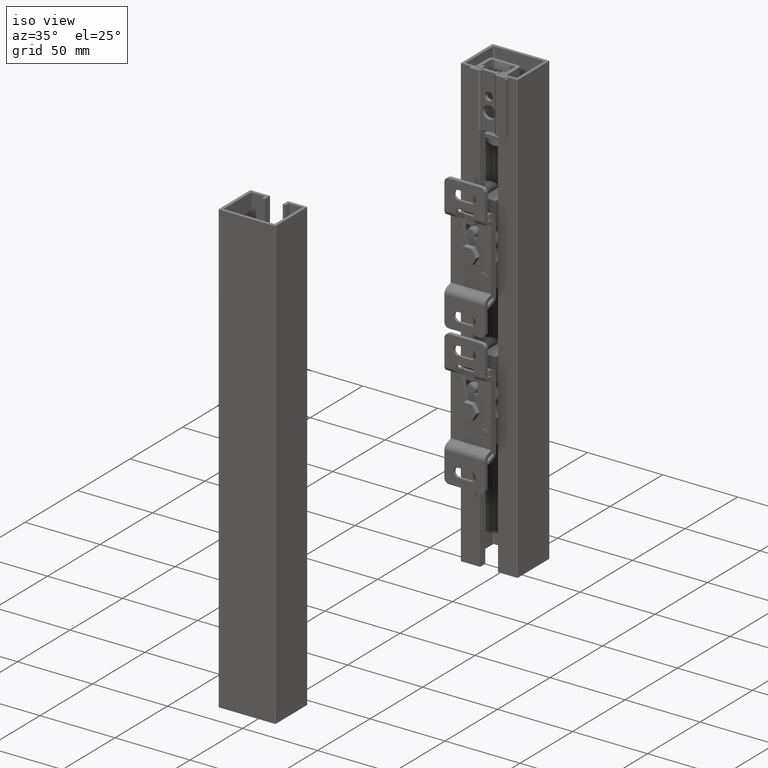
[diagram: clean part render]
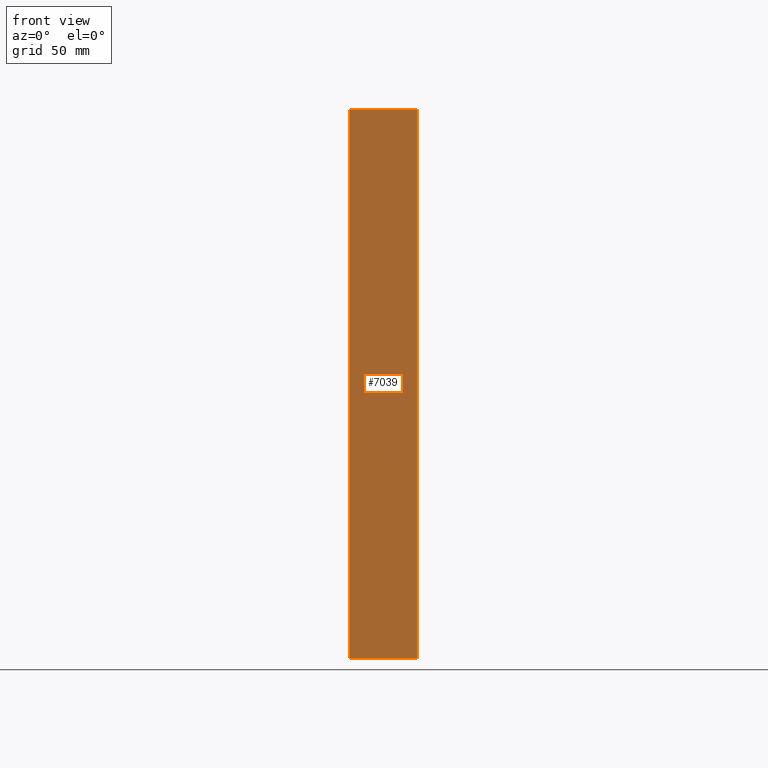
[diagram: tour spotlight — one face highlighted and labeled with its STEP entity id]
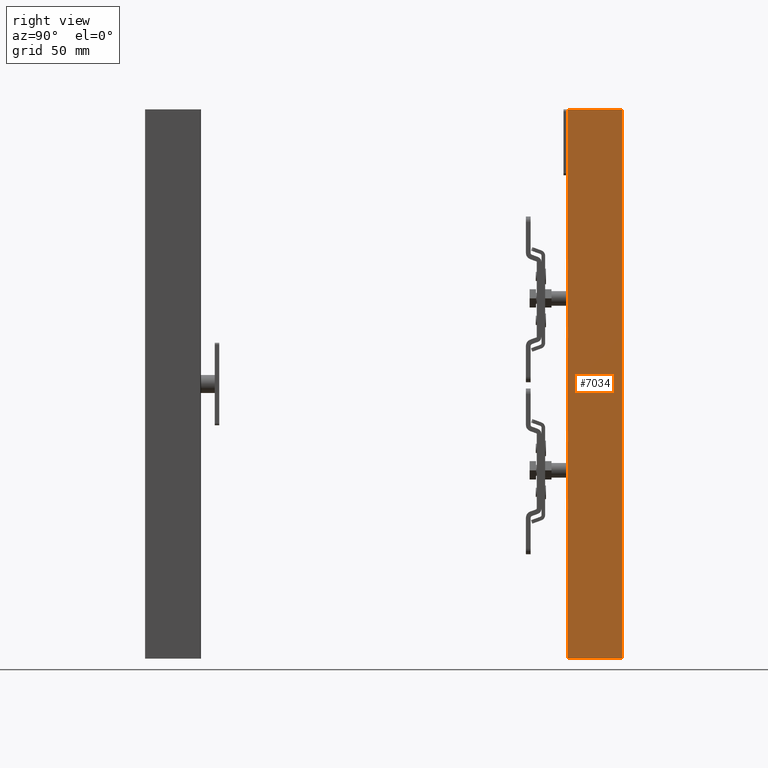
[diagram: tour spotlight — one face highlighted and labeled with its STEP entity id]
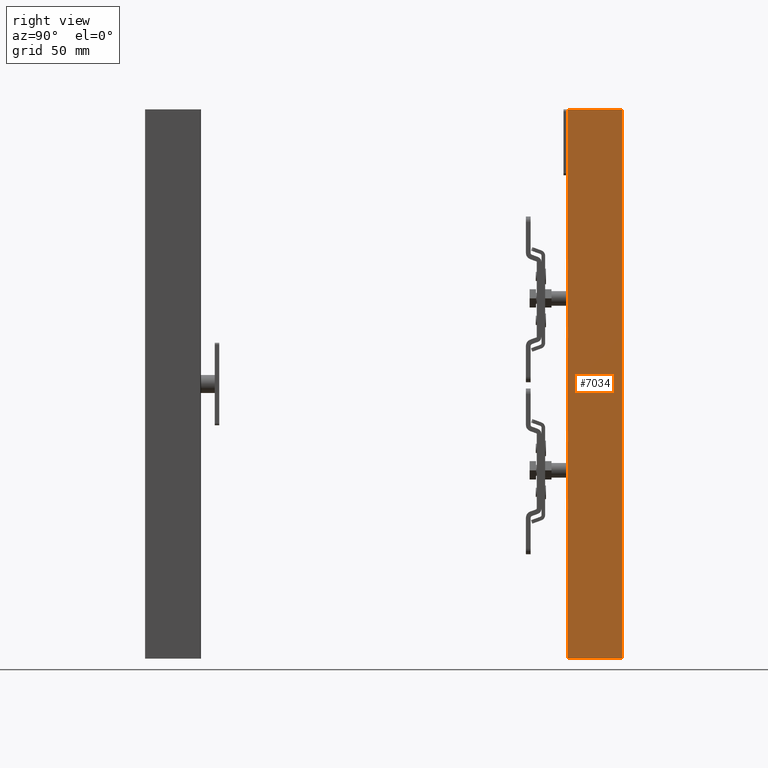
[diagram: tour spotlight — one face highlighted and labeled with its STEP entity id]
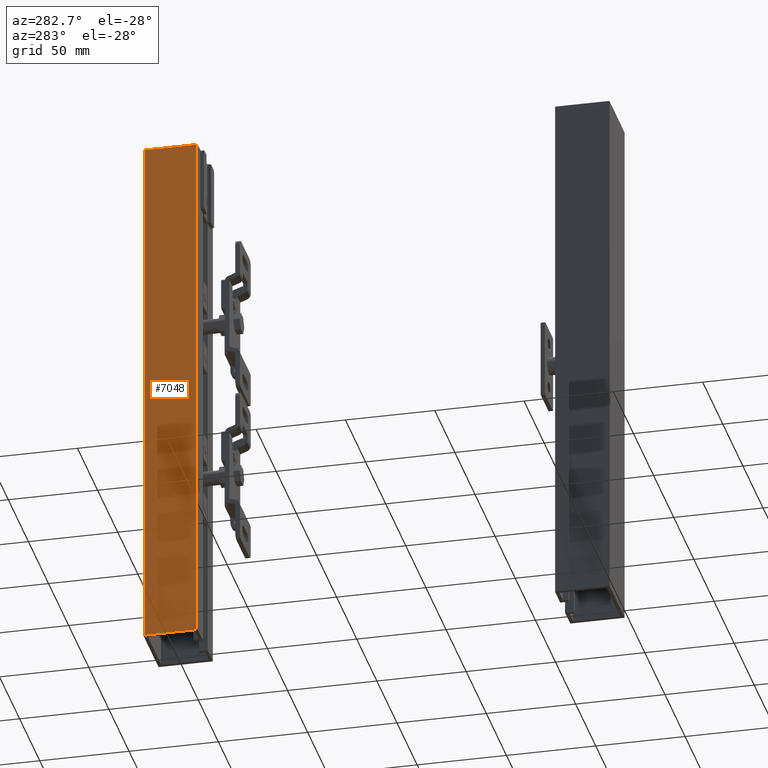
[diagram: tour spotlight — one face highlighted and labeled with its STEP entity id]
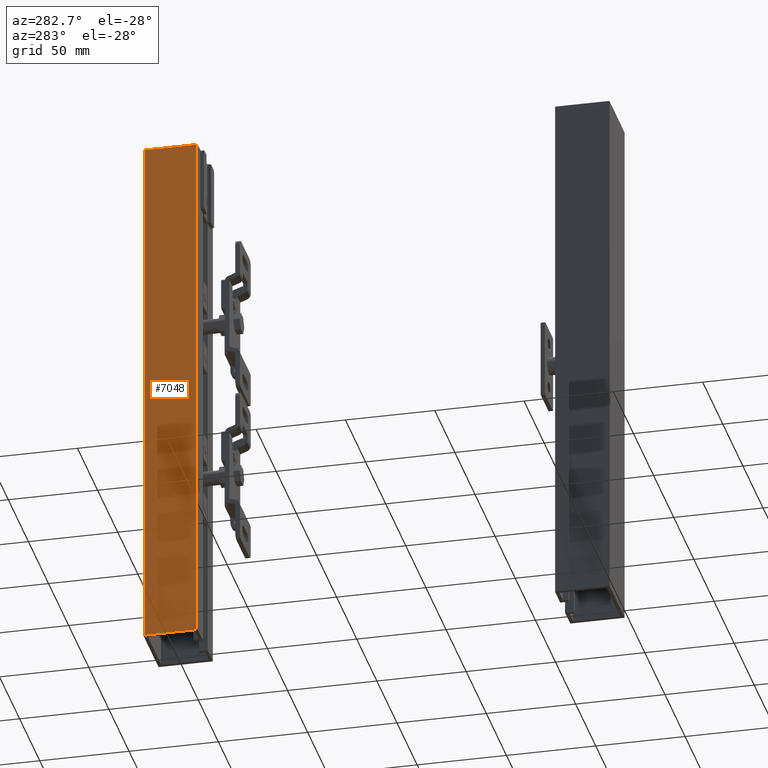
[diagram: tour spotlight — one face highlighted and labeled with its STEP entity id]
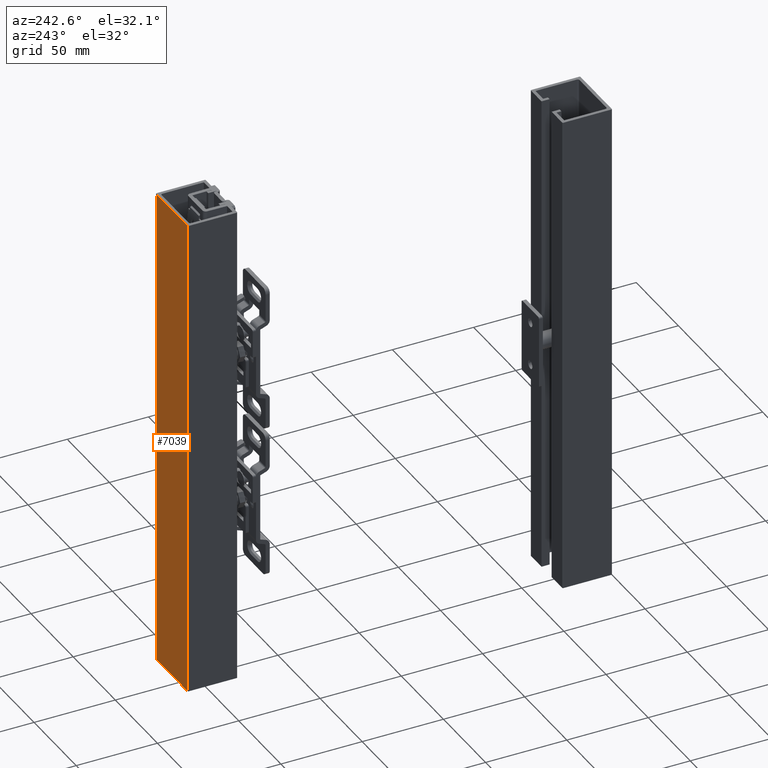
[diagram: tour spotlight — one face highlighted and labeled with its STEP entity id]
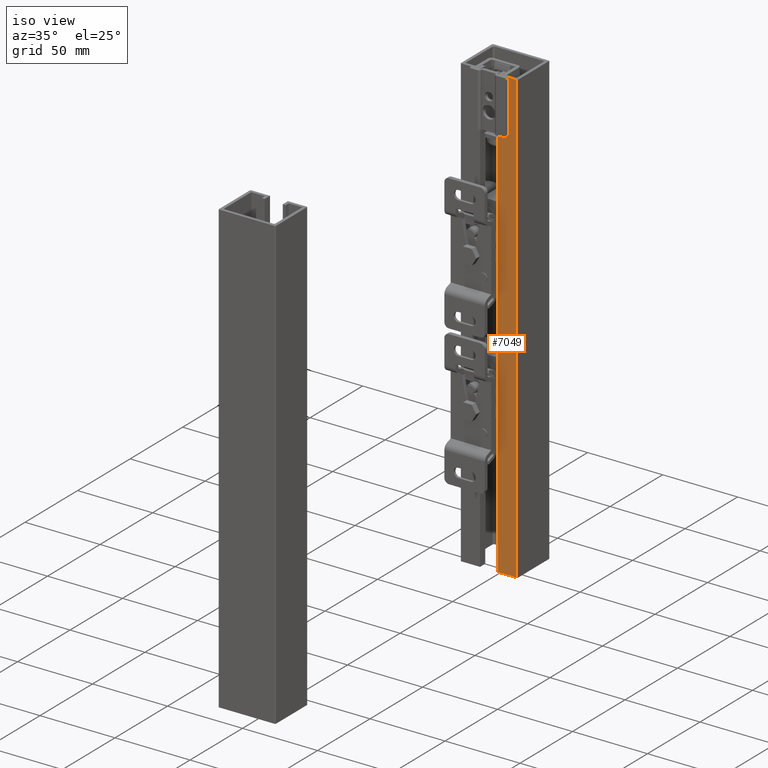
[diagram: tour spotlight — one face highlighted and labeled with its STEP entity id]
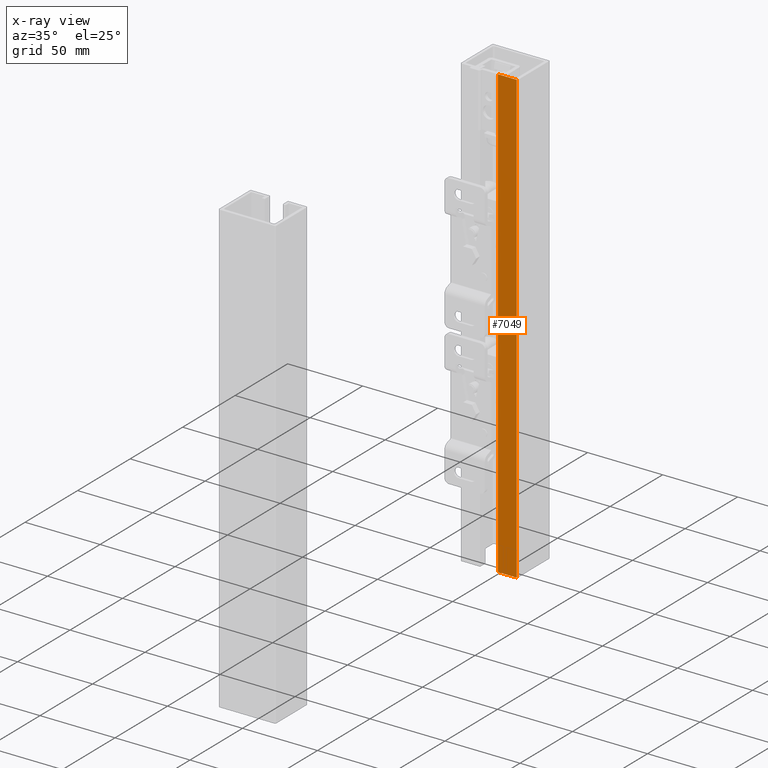
[diagram: x-ray of the same camera — body ghosted, this tour face saturated]
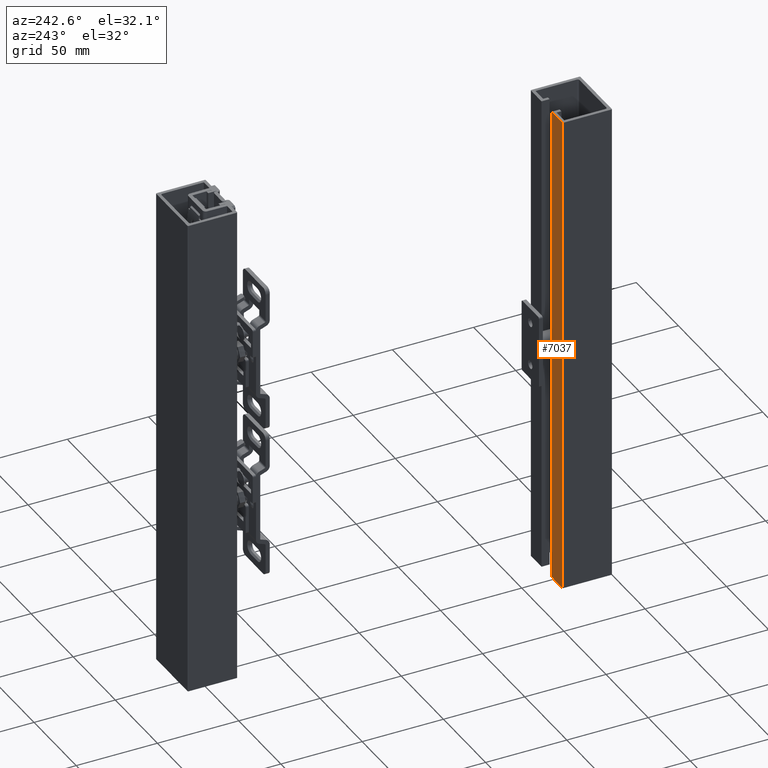
[diagram: tour spotlight — one face highlighted and labeled with its STEP entity id]
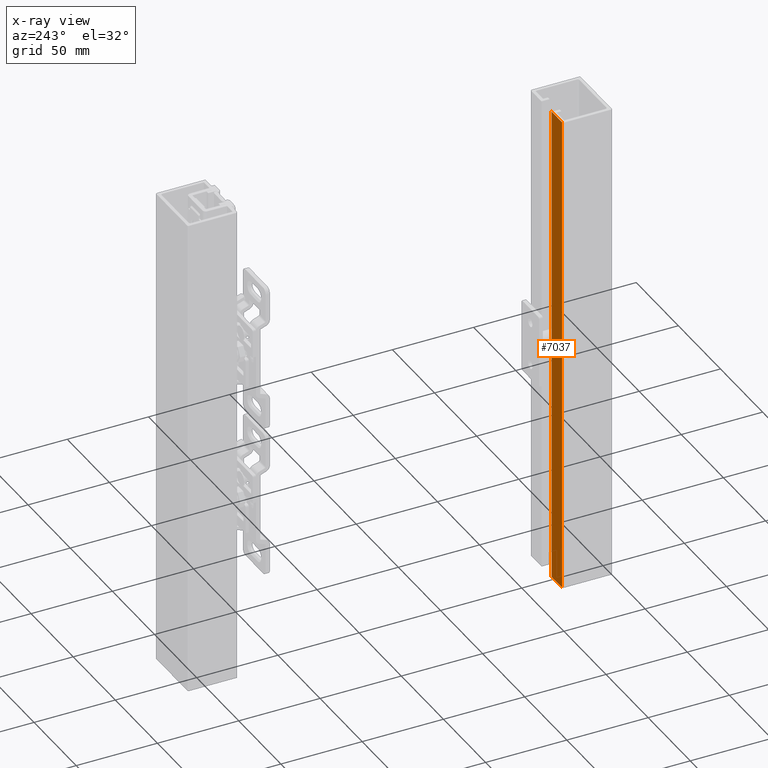
[diagram: x-ray of the same camera — body ghosted, this tour face saturated]
A machine part: a face-by-face anatomy tour. The part has 700 B-rep faces; the first image is the clean iso view, then the 8 largest visible faces are spotlighted one at a time (largest first), each with its STEP entity span.

Face 1 — front view, entity #7039. In plain terms, the highlighted planar face has unit normal (0, -1, 0).
Definition (entity closure, byte-faithful):
#284=PLANE('',#7491);
#531=FACE_OUTER_BOUND('',#956,.T.);
#956=EDGE_LOOP('',(#4914,#4915,#4916,#4917));
#1530=LINE('',#10534,#2189);
#1535=LINE('',#10550,#2194);
#1537=LINE('',#10554,#2196);
#1538=LINE('',#10555,#2197);
#2189=VECTOR('',#8305,37.);
#2194=VECTOR('',#8322,300.);
#2196=VECTOR('',#8326,37.);
#2197=VECTOR('',#8327,300.);
#3168=VERTEX_POINT('',#10531);
#3169=VERTEX_POINT('',#10533);
#3174=VERTEX_POINT('',#10548);
#3175=VERTEX_POINT('',#10553);
#3880=EDGE_CURVE('',#3168,#3169,#1530,.T.);
#3888=EDGE_CURVE('',#3174,#3168,#1535,.T.);
#3890=EDGE_CURVE('',#3175,#3174,#1537,.T.);
#3891=EDGE_CURVE('',#3169,#3175,#1538,.T.);
#4914=ORIENTED_EDGE('',*,*,#3888,.F.);
#4915=ORIENTED_EDGE('',*,*,#3890,.F.);
#4916=ORIENTED_EDGE('',*,*,#3891,.F.);
#4917=ORIENTED_EDGE('',*,*,#3880,.F.);
#7039=ADVANCED_FACE('',(#531),#284,.T.);
#7491=AXIS2_PLACEMENT_3D('',#10552,#8324,#8325);
#8305=DIRECTION('',(1.,5.84327907697451E-17,0.));
#8322=DIRECTION('',(0.,0.,-1.));
#8324=DIRECTION('center_axis',(-5.84327907697451E-17,1.,0.));
#8325=DIRECTION('ref_axis',(-1.,0.,0.));
#8326=DIRECTION('',(-1.,-5.84327907697451E-17,0.));
#8327=DIRECTION('',(0.,0.,1.));
#10531=CARTESIAN_POINT('',(-18.5,15.25,-150.));
#10533=CARTESIAN_POINT('',(18.5,15.25,-150.));
#10534=CARTESIAN_POINT('',(19.,15.25,-150.));
#10548=CARTESIAN_POINT('',(-18.5,15.25,150.));
#10550=CARTESIAN_POINT('',(-18.5,15.25,0.));
#10552=CARTESIAN_POINT('Origin',(19.,15.25,0.));
#10553=CARTESIAN_POINT('',(18.5,15.25,150.));
#10554=CARTESIAN_POINT('',(19.,15.25,150.));
#10555=CARTESIAN_POINT('',(18.5,15.25,0.));

Face 2 — right view, entity #7034. In plain terms, the highlighted planar face has unit normal (1, 0, -0).
Definition (entity closure, byte-faithful):
#281=PLANE('',#7481);
#526=FACE_OUTER_BOUND('',#951,.T.);
#951=EDGE_LOOP('',(#4876,#4877,#4878,#4879));
#1514=LINE('',#10498,#2173);
#1515=LINE('',#10501,#2174);
#1516=LINE('',#10503,#2175);
#1517=LINE('',#10504,#2176);
#2173=VECTOR('',#8281,300.);
#2174=VECTOR('',#8284,29.5);
#2175=VECTOR('',#8285,300.);
#2176=VECTOR('',#8286,29.5);
#3150=VERTEX_POINT('',#10491);
#3153=VERTEX_POINT('',#10496);
#3154=VERTEX_POINT('',#10500);
#3155=VERTEX_POINT('',#10502);
#3862=EDGE_CURVE('',#3153,#3150,#1514,.T.);
#3863=EDGE_CURVE('',#3154,#3153,#1515,.T.);
#3864=EDGE_CURVE('',#3155,#3154,#1516,.T.);
#3865=EDGE_CURVE('',#3150,#3155,#1517,.T.);
#4876=ORIENTED_EDGE('',*,*,#3862,.F.);
#4877=ORIENTED_EDGE('',*,*,#3863,.F.);
#4878=ORIENTED_EDGE('',*,*,#3864,.F.);
#4879=ORIENTED_EDGE('',*,*,#3865,.F.);
#7034=ADVANCED_FACE('',(#526),#281,.T.);
#7481=AXIS2_PLACEMENT_3D('',#10499,#8282,#8283);
#8281=DIRECTION('',(0.,0.,1.));
#8282=DIRECTION('center_axis',(1.,0.,0.));
#8283=DIRECTION('ref_axis',(0.,1.,0.));
#8284=DIRECTION('',(0.,-1.,0.));
#8285=DIRECTION('',(0.,0.,-1.));
#8286=DIRECTION('',(0.,1.,0.));
#10491=CARTESIAN_POINT('',(19.,-14.75,150.));
#10496=CARTESIAN_POINT('',(19.,-14.75,-150.));
#10498=CARTESIAN_POINT('',(19.,-14.75,0.));
#10499=CARTESIAN_POINT('Origin',(19.,-15.25,0.));
#10500=CARTESIAN_POINT('',(19.,14.75,-150.));
#10501=CARTESIAN_POINT('',(19.,-15.25,-150.));
#10502=CARTESIAN_POINT('',(19.,14.75,150.));
#10503=CARTESIAN_POINT('',(19.,14.75,0.));
#10504=CARTESIAN_POINT('',(19.,-15.25,150.));

Face 3 — right view, entity #7034. In plain terms, the highlighted planar face has unit normal (1, 0, 0).
Definition (entity closure, byte-faithful):
#281=PLANE('',#7481);
#526=FACE_OUTER_BOUND('',#951,.T.);
#951=EDGE_LOOP('',(#4876,#4877,#4878,#4879));
#1514=LINE('',#10498,#2173);
#1515=LINE('',#10501,#2174);
#1516=LINE('',#10503,#2175);
#1517=LINE('',#10504,#2176);
#2173=VECTOR('',#8281,300.);
#2174=VECTOR('',#8284,29.5);
#2175=VECTOR('',#8285,300.);
#2176=VECTOR('',#8286,29.5);
#3150=VERTEX_POINT('',#10491);
#3153=VERTEX_POINT('',#10496);
#3154=VERTEX_POINT('',#10500);
#3155=VERTEX_POINT('',#10502);
#3862=EDGE_CURVE('',#3153,#3150,#1514,.T.);
#3863=EDGE_CURVE('',#3154,#3153,#1515,.T.);
#3864=EDGE_CURVE('',#3155,#3154,#1516,.T.);
#3865=EDGE_CURVE('',#3150,#3155,#1517,.T.);
#4876=ORIENTED_EDGE('',*,*,#3862,.F.);
#4877=ORIENTED_EDGE('',*,*,#3863,.F.);
#4878=ORIENTED_EDGE('',*,*,#3864,.F.);
#4879=ORIENTED_EDGE('',*,*,#3865,.F.);
#7034=ADVANCED_FACE('',(#526),#281,.T.);
#7481=AXIS2_PLACEMENT_3D('',#10499,#8282,#8283);
#8281=DIRECTION('',(0.,0.,1.));
#8282=DIRECTION('center_axis',(1.,0.,0.));
#8283=DIRECTION('ref_axis',(0.,1.,0.));
#8284=DIRECTION('',(0.,-1.,0.));
#8285=DIRECTION('',(0.,0.,-1.));
#8286=DIRECTION('',(0.,1.,0.));
#10491=CARTESIAN_POINT('',(19.,-14.75,150.));
#10496=CARTESIAN_POINT('',(19.,-14.75,-150.));
#10498=CARTESIAN_POINT('',(19.,-14.75,0.));
#10499=CARTESIAN_POINT('Origin',(19.,-15.25,0.));
#10500=CARTESIAN_POINT('',(19.,14.75,-150.));
#10501=CARTESIAN_POINT('',(19.,-15.25,-150.));
#10502=CARTESIAN_POINT('',(19.,14.75,150.));
#10503=CARTESIAN_POINT('',(19.,14.75,0.));
#10504=CARTESIAN_POINT('',(19.,-15.25,150.));

Face 4 — auxiliary view, entity #7048. In plain terms, the highlighted planar face has unit normal (-1, -0, 0).
Definition (entity closure, byte-faithful):
#292=PLANE('',#7501);
#540=FACE_OUTER_BOUND('',#965,.T.);
#965=EDGE_LOOP('',(#4950,#4951,#4952,#4953));
#1529=LINE('',#10530,#2188);
#1532=LINE('',#10541,#2191);
#1536=LINE('',#10551,#2195);
#1553=LINE('',#10587,#2212);
#2188=VECTOR('',#8302,29.5);
#2191=VECTOR('',#8313,300.);
#2195=VECTOR('',#8323,300.);
#2212=VECTOR('',#8362,29.5);
#3166=VERTEX_POINT('',#10527);
#3167=VERTEX_POINT('',#10529);
#3171=VERTEX_POINT('',#10539);
#3173=VERTEX_POINT('',#10547);
#3878=EDGE_CURVE('',#3166,#3167,#1529,.T.);
#3884=EDGE_CURVE('',#3171,#3166,#1532,.T.);
#3889=EDGE_CURVE('',#3167,#3173,#1536,.T.);
#3907=EDGE_CURVE('',#3173,#3171,#1553,.T.);
#4950=ORIENTED_EDGE('',*,*,#3884,.F.);
#4951=ORIENTED_EDGE('',*,*,#3907,.F.);
#4952=ORIENTED_EDGE('',*,*,#3889,.F.);
#4953=ORIENTED_EDGE('',*,*,#3878,.F.);
#7048=ADVANCED_FACE('',(#540),#292,.T.);
#7501=AXIS2_PLACEMENT_3D('',#10586,#8360,#8361);
#8302=DIRECTION('',(-2.91206039245943E-16,1.,0.));
#8313=DIRECTION('',(0.,0.,-1.));
#8323=DIRECTION('',(0.,0.,1.));
#8360=DIRECTION('center_axis',(-1.,-2.91206039245943E-16,0.));
#8361=DIRECTION('ref_axis',(3.5527136788005E-16,-1.,0.));
#8362=DIRECTION('',(2.91206039245943E-16,-1.,0.));
#10527=CARTESIAN_POINT('',(-19.,-14.75,-150.));
#10529=CARTESIAN_POINT('',(-19.,14.75,-150.));
#10530=CARTESIAN_POINT('',(-19.,15.25,-150.));
#10539=CARTESIAN_POINT('',(-19.,-14.75,150.));
#10541=CARTESIAN_POINT('',(-19.,-14.75,0.));
#10547=CARTESIAN_POINT('',(-19.,14.75,150.));
#10551=CARTESIAN_POINT('',(-19.,14.75,0.));
#10586=CARTESIAN_POINT('Origin',(-19.,15.25,0.));
#10587=CARTESIAN_POINT('',(-19.,15.25,150.));

Face 5 — auxiliary view, entity #7048. In plain terms, the highlighted planar face has unit normal (-1, -0, 0).
Definition (entity closure, byte-faithful):
#292=PLANE('',#7501);
#540=FACE_OUTER_BOUND('',#965,.T.);
#965=EDGE_LOOP('',(#4950,#4951,#4952,#4953));
#1529=LINE('',#10530,#2188);
#1532=LINE('',#10541,#2191);
#1536=LINE('',#10551,#2195);
#1553=LINE('',#10587,#2212);
#2188=VECTOR('',#8302,29.5);
#2191=VECTOR('',#8313,300.);
#2195=VECTOR('',#8323,300.);
#2212=VECTOR('',#8362,29.5);
#3166=VERTEX_POINT('',#10527);
#3167=VERTEX_POINT('',#10529);
#3171=VERTEX_POINT('',#10539);
#3173=VERTEX_POINT('',#10547);
#3878=EDGE_CURVE('',#3166,#3167,#1529,.T.);
#3884=EDGE_CURVE('',#3171,#3166,#1532,.T.);
#3889=EDGE_CURVE('',#3167,#3173,#1536,.T.);
#3907=EDGE_CURVE('',#3173,#3171,#1553,.T.);
#4950=ORIENTED_EDGE('',*,*,#3884,.F.);
#4951=ORIENTED_EDGE('',*,*,#3907,.F.);
#4952=ORIENTED_EDGE('',*,*,#3889,.F.);
#4953=ORIENTED_EDGE('',*,*,#3878,.F.);
#7048=ADVANCED_FACE('',(#540),#292,.T.);
#7501=AXIS2_PLACEMENT_3D('',#10586,#8360,#8361);
#8302=DIRECTION('',(-2.91206039245943E-16,1.,0.));
#8313=DIRECTION('',(0.,0.,-1.));
#8323=DIRECTION('',(0.,0.,1.));
#8360=DIRECTION('center_axis',(-1.,-2.91206039245943E-16,0.));
#8361=DIRECTION('ref_axis',(3.5527136788005E-16,-1.,0.));
#8362=DIRECTION('',(2.91206039245943E-16,-1.,0.));
#10527=CARTESIAN_POINT('',(-19.,-14.75,-150.));
#10529=CARTESIAN_POINT('',(-19.,14.75,-150.));
#10530=CARTESIAN_POINT('',(-19.,15.25,-150.));
#10539=CARTESIAN_POINT('',(-19.,-14.75,150.));
#10541=CARTESIAN_POINT('',(-19.,-14.75,0.));
#10547=CARTESIAN_POINT('',(-19.,14.75,150.));
#10551=CARTESIAN_POINT('',(-19.,14.75,0.));
#10586=CARTESIAN_POINT('Origin',(-19.,15.25,0.));
#10587=CARTESIAN_POINT('',(-19.,15.25,150.));

Face 6 — auxiliary view, entity #7039. In plain terms, the highlighted planar face has unit normal (-0, 1, 0).
Definition (entity closure, byte-faithful):
#284=PLANE('',#7491);
#531=FACE_OUTER_BOUND('',#956,.T.);
#956=EDGE_LOOP('',(#4914,#4915,#4916,#4917));
#1530=LINE('',#10534,#2189);
#1535=LINE('',#10550,#2194);
#1537=LINE('',#10554,#2196);
#1538=LINE('',#10555,#2197);
#2189=VECTOR('',#8305,37.);
#2194=VECTOR('',#8322,300.);
#2196=VECTOR('',#8326,37.);
#2197=VECTOR('',#8327,300.);
#3168=VERTEX_POINT('',#10531);
#3169=VERTEX_POINT('',#10533);
#3174=VERTEX_POINT('',#10548);
#3175=VERTEX_POINT('',#10553);
#3880=EDGE_CURVE('',#3168,#3169,#1530,.T.);
#3888=EDGE_CURVE('',#3174,#3168,#1535,.T.);
#3890=EDGE_CURVE('',#3175,#3174,#1537,.T.);
#3891=EDGE_CURVE('',#3169,#3175,#1538,.T.);
#4914=ORIENTED_EDGE('',*,*,#3888,.F.);
#4915=ORIENTED_EDGE('',*,*,#3890,.F.);
#4916=ORIENTED_EDGE('',*,*,#3891,.F.);
#4917=ORIENTED_EDGE('',*,*,#3880,.F.);
#7039=ADVANCED_FACE('',(#531),#284,.T.);
#7491=AXIS2_PLACEMENT_3D('',#10552,#8324,#8325);
#8305=DIRECTION('',(1.,5.84327907697451E-17,0.));
#8322=DIRECTION('',(0.,0.,-1.));
#8324=DIRECTION('center_axis',(-5.84327907697451E-17,1.,0.));
#8325=DIRECTION('ref_axis',(-1.,0.,0.));
#8326=DIRECTION('',(-1.,-5.84327907697451E-17,0.));
#8327=DIRECTION('',(0.,0.,1.));
#10531=CARTESIAN_POINT('',(-18.5,15.25,-150.));
#10533=CARTESIAN_POINT('',(18.5,15.25,-150.));
#10534=CARTESIAN_POINT('',(19.,15.25,-150.));
#10548=CARTESIAN_POINT('',(-18.5,15.25,150.));
#10550=CARTESIAN_POINT('',(-18.5,15.25,0.));
#10552=CARTESIAN_POINT('Origin',(19.,15.25,0.));
#10553=CARTESIAN_POINT('',(18.5,15.25,150.));
#10554=CARTESIAN_POINT('',(19.,15.25,150.));
#10555=CARTESIAN_POINT('',(18.5,15.25,0.));

Face 7 — iso view, entity #7049. An x-ray twin of the same camera follows (body ghosted, this face saturated) — the face is partly hidden behind the body. In plain terms, the highlighted planar face has unit normal (0, -1, 0).
Definition (entity closure, byte-faithful):
#293=PLANE('',#7502);
#541=FACE_OUTER_BOUND('',#966,.T.);
#966=EDGE_LOOP('',(#4954,#4955,#4956,#4957));
#1513=LINE('',#10495,#2172);
#1518=LINE('',#10507,#2177);
#1554=LINE('',#10590,#2213);
#1555=LINE('',#10591,#2214);
#2172=VECTOR('',#8278,300.);
#2177=VECTOR('',#8289,12.5);
#2213=VECTOR('',#8365,12.5);
#2214=VECTOR('',#8366,300.);
#3151=VERTEX_POINT('',#10492);
#3152=VERTEX_POINT('',#10494);
#3156=VERTEX_POINT('',#10506);
#3183=VERTEX_POINT('',#10589);
#3860=EDGE_CURVE('',#3151,#3152,#1513,.T.);
#3866=EDGE_CURVE('',#3152,#3156,#1518,.T.);
#3908=EDGE_CURVE('',#3183,#3151,#1554,.T.);
#3909=EDGE_CURVE('',#3156,#3183,#1555,.T.);
#4954=ORIENTED_EDGE('',*,*,#3860,.F.);
#4955=ORIENTED_EDGE('',*,*,#3908,.F.);
#4956=ORIENTED_EDGE('',*,*,#3909,.F.);
#4957=ORIENTED_EDGE('',*,*,#3866,.F.);
#7049=ADVANCED_FACE('',(#541),#293,.T.);
#7502=AXIS2_PLACEMENT_3D('',#10588,#8363,#8364);
#8278=DIRECTION('',(0.,0.,-1.));
#8289=DIRECTION('',(-1.,-5.12410626750073E-16,0.));
#8363=DIRECTION('center_axis',(5.12410626750073E-16,-1.,0.));
#8364=DIRECTION('ref_axis',(1.,5.32907051820075E-16,0.));
#8365=DIRECTION('',(1.,5.12410626750073E-16,0.));
#8366=DIRECTION('',(0.,0.,1.));
#10492=CARTESIAN_POINT('',(18.5,-15.25,150.));
#10494=CARTESIAN_POINT('',(18.5,-15.25,-150.));
#10495=CARTESIAN_POINT('',(18.5,-15.25,0.));
#10506=CARTESIAN_POINT('',(6.00000000000002,-15.25,-150.));
#10507=CARTESIAN_POINT('',(6.00000000000002,-15.25,-150.));
#10588=CARTESIAN_POINT('Origin',(6.00000000000002,-15.25,0.));
#10589=CARTESIAN_POINT('',(6.00000000000002,-15.25,150.));
#10590=CARTESIAN_POINT('',(6.00000000000002,-15.25,150.));
#10591=CARTESIAN_POINT('',(6.00000000000002,-15.25,0.));

Face 8 — auxiliary view, entity #7037. An x-ray twin of the same camera follows (body ghosted, this face saturated) — the face is partly hidden behind the body. In plain terms, the highlighted planar face has unit normal (-0, 1, -0).
Definition (entity closure, byte-faithful):
#283=PLANE('',#7488);
#529=FACE_OUTER_BOUND('',#954,.T.);
#954=EDGE_LOOP('',(#4906,#4907,#4908,#4909));
#1528=LINE('',#10526,#2187);
#1531=LINE('',#10538,#2190);
#1533=LINE('',#10544,#2192);
#1534=LINE('',#10545,#2193);
#2187=VECTOR('',#8299,12.5);
#2190=VECTOR('',#8310,300.);
#2192=VECTOR('',#8316,300.);
#2193=VECTOR('',#8317,12.5);
#3164=VERTEX_POINT('',#10523);
#3165=VERTEX_POINT('',#10525);
#3170=VERTEX_POINT('',#10537);
#3172=VERTEX_POINT('',#10543);
#3876=EDGE_CURVE('',#3164,#3165,#1528,.T.);
#3882=EDGE_CURVE('',#3165,#3170,#1531,.T.);
#3885=EDGE_CURVE('',#3164,#3172,#1533,.T.);
#3886=EDGE_CURVE('',#3170,#3172,#1534,.T.);
#4906=ORIENTED_EDGE('',*,*,#3882,.F.);
#4907=ORIENTED_EDGE('',*,*,#3876,.F.);
#4908=ORIENTED_EDGE('',*,*,#3885,.T.);
#4909=ORIENTED_EDGE('',*,*,#3886,.F.);
#7037=ADVANCED_FACE('',(#529),#283,.T.);
#7488=AXIS2_PLACEMENT_3D('',#10542,#8314,#8315);
#8299=DIRECTION('',(-1.,1.19562479575017E-15,0.));
#8310=DIRECTION('',(0.,0.,1.));
#8314=DIRECTION('center_axis',(-1.19562479575017E-15,-1.,0.));
#8315=DIRECTION('ref_axis',(1.,-1.24344978758018E-15,0.));
#8316=DIRECTION('',(0.,0.,1.));
#8317=DIRECTION('',(1.,-1.19562479575017E-15,0.));
#10523=CARTESIAN_POINT('',(-5.99999999999998,-15.25,-150.));
#10525=CARTESIAN_POINT('',(-18.5,-15.25,-150.));
#10526=CARTESIAN_POINT('',(-19.,-15.25,-150.));
#10537=CARTESIAN_POINT('',(-18.5,-15.25,150.));
#10538=CARTESIAN_POINT('',(-18.5,-15.25,0.));
#10542=CARTESIAN_POINT('Origin',(-19.,-15.25,0.));
#10543=CARTESIAN_POINT('',(-5.99999999999998,-15.25,150.));
#10544=CARTESIAN_POINT('',(-5.99999999999998,-15.25,0.));
#10545=CARTESIAN_POINT('',(-19.,-15.25,150.));